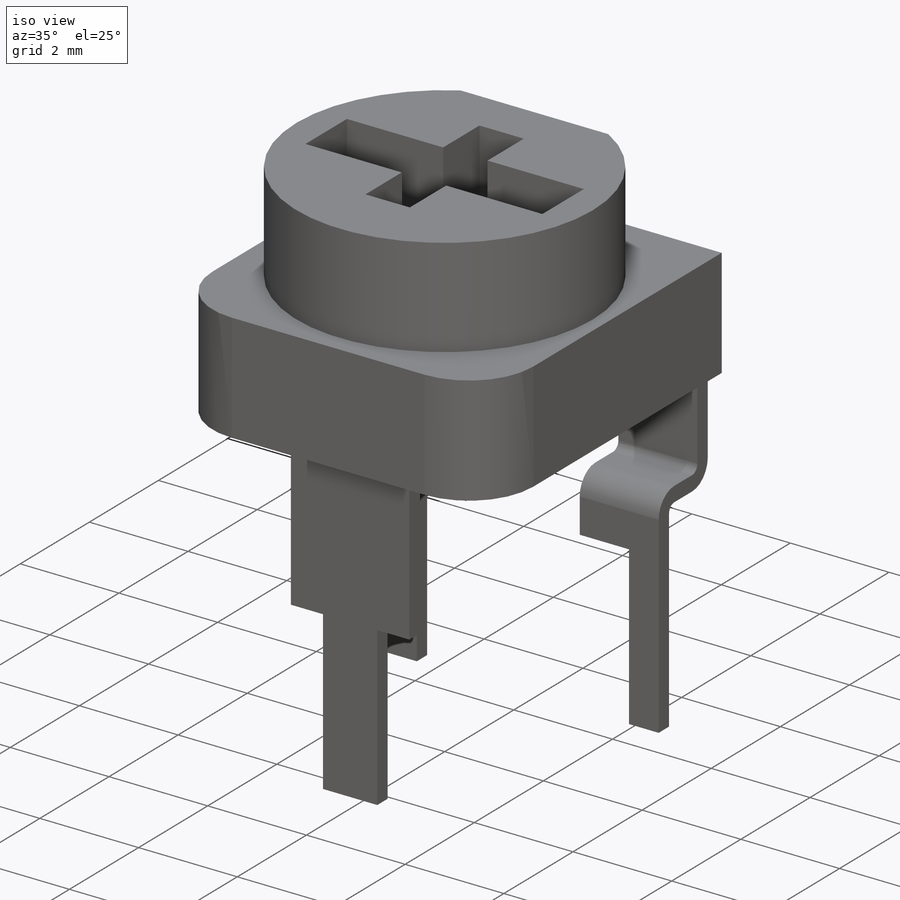
[diagram: iso view]
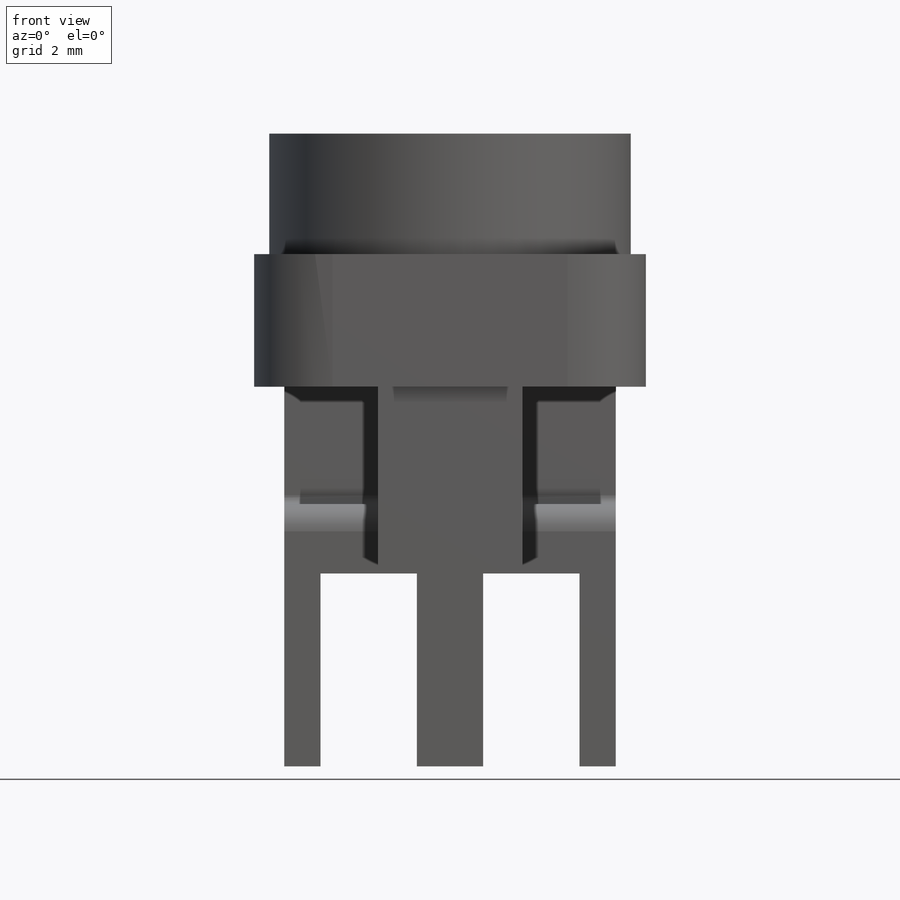
[diagram: front view]
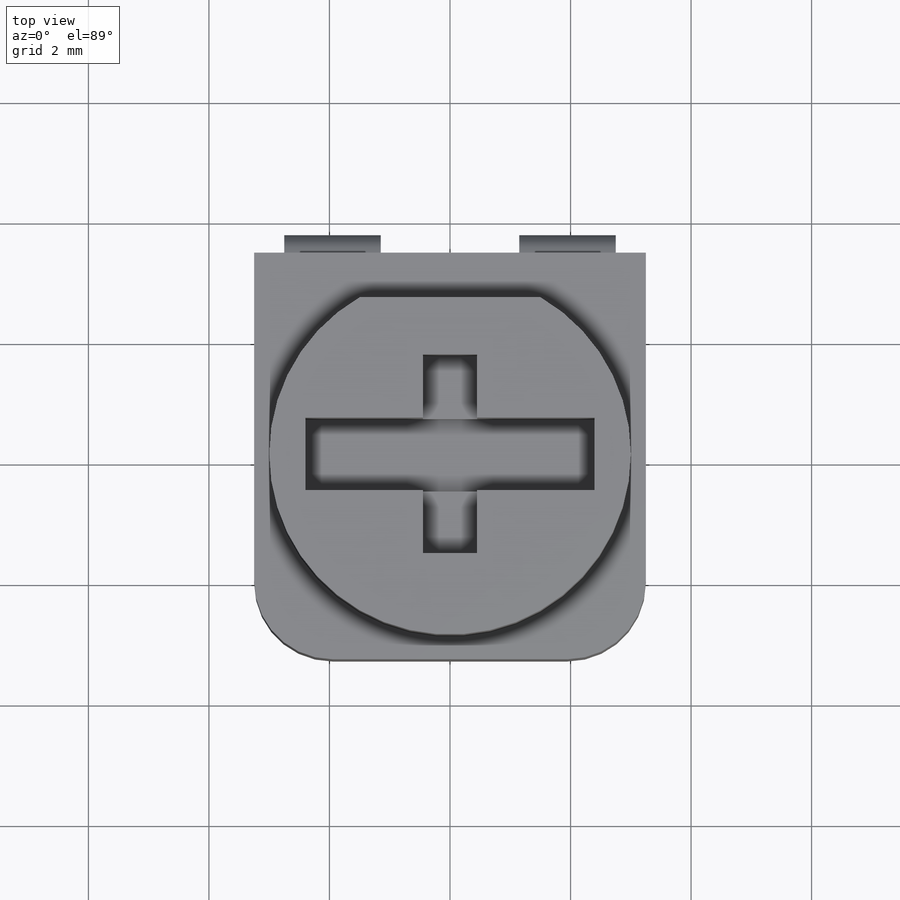
[diagram: top view]
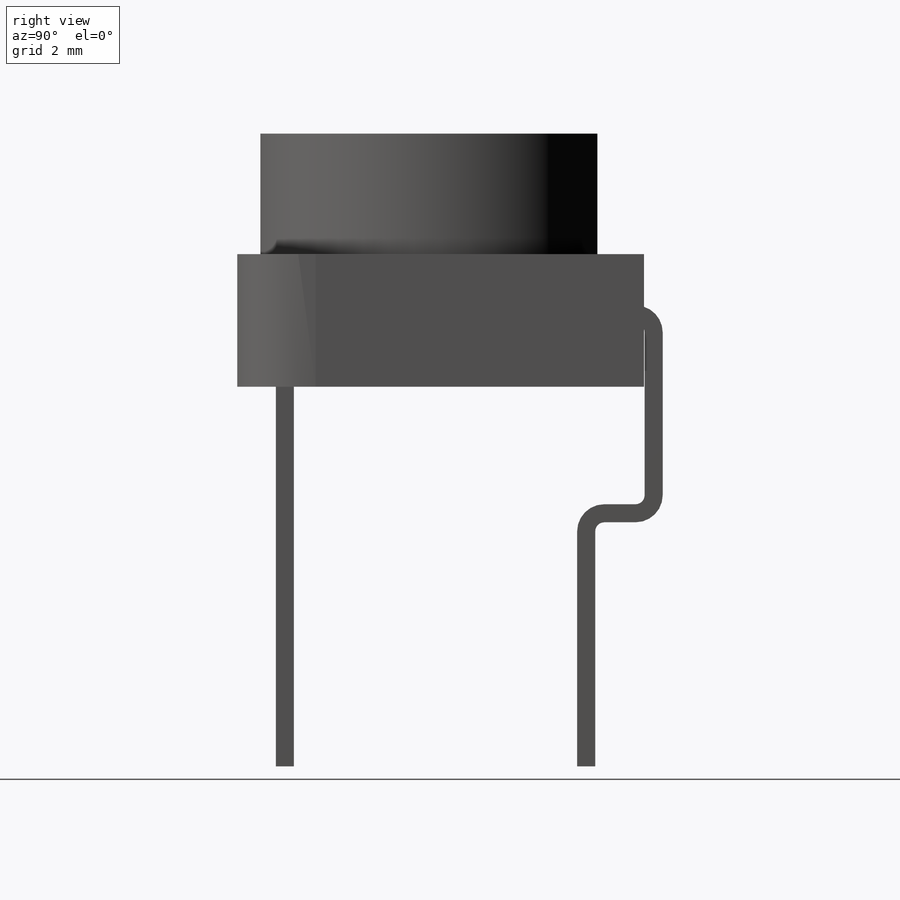
[diagram: right view]
SOLIDWORKS PART (.sldprt)
format: sldprt  version: not decoded by parser v0  size: 258,048 bytes
history: native  units: mm
features: sketch x6, plane x3, extrude x3, cut_extrude x2, material x1, pattern_linear x1 (+8 scaffold rows collapsed)
feature tree (24):
  scaffold x8  (default folders/planes/origin — collapsed)
  material  "Matériau <non spécifié>"
  plane  "Plan de face"
  plane  "Plan de dessus"
  plane  "Plan de droite"
  sketch  "Esquisse1"  dims[D1=~65.642739mm D2=2.6mm D3=4.8mm D4=1.2mm]
  extrude  "Boss.-Extru.1"  Depth=2mm
  sketch  "Esquisse2"  dims[D1=0.9mm D2=3.3mm]
  cut_extrude  "Enlèv. mat.-Extru.1"  Depth=1.5mm
  sketch  "Esquisse3"  dims[D3=1.3mm D1=6.5mm D2=6.75mm D4=3.375mm]
  extrude  "Boss.-Extru.2"  Depth=2.2mm
  sketch  "Esquisse4"  dims[c1.D1=0.3mm c1.D2=1.12mm c1.D3=7.5mm c1.D4=4.2mm c1.D5=0.16mm c1.D6=1.0mm c2.D1=1.6mm c2.D19=1.95mm c2.D5=0.3mm c2.D6=1.0mm c2.D7=5.0mm]
  pattern_linear  "Répétition linéaire1"  Count1=2 Count2=1 Spacing1=3.9mm Spacing2=10mm
  sketch  "Esquisse5"  dims[D1=5.0mm]
  extrude  "Extru.-Mince2"  Depth=2.4mm
  sketch  "Esquisse6"  dims[c1.D1=1.6mm c1.D2=3.2mm c1.D3=0.6mm c1.D4=3.2mm c1.D5=0.6mm c2.D4=1.6mm]
  cut_extrude  "Enlèv. mat.-Extru.2"  [1 undecoded]
decode coverage: 11 of 12 modeling features carry decoded parameters
note: ~ marks probable driven/reference dimensions
note: 1 parameter value undecoded
note: suppression state not decoded; provenance and decode notes live in map.json
